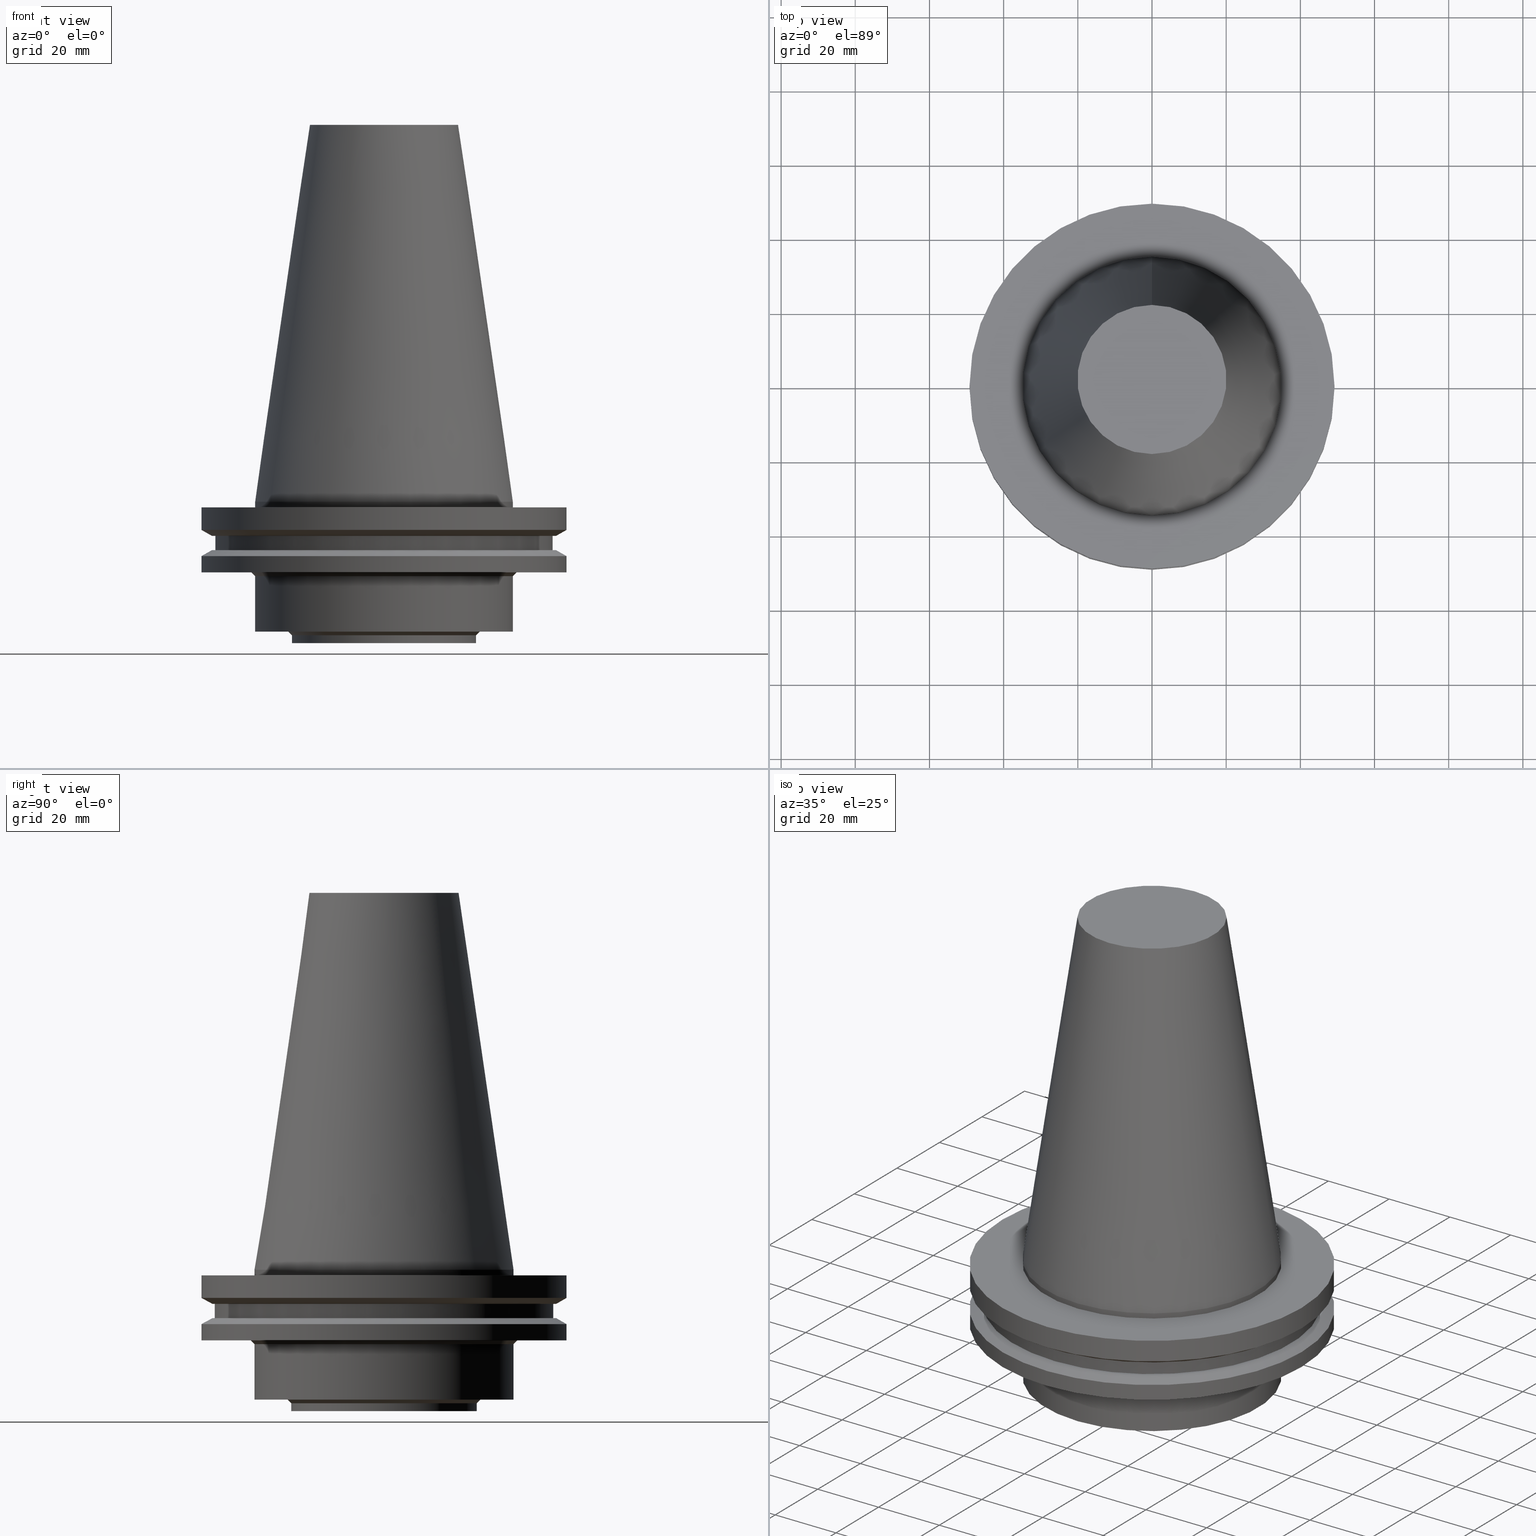
[diagram: canonical four-view strip — front | top / right | iso, engineering-drawing reading convention]
A machine part, canonical four-view strip (front | top / right | iso — engineering-drawing reading convention). The complete STEP part file that produces these views, byte-faithful:
ISO-10303-21;
HEADER;
FILE_DESCRIPTION((''),'1');
FILE_NAME('V:/90_\X2\53D65F9730C730FC30BF\X0\/00_\X2\6DE18DEF30C730FC30BF\X0\/ALL/BCV-BKUS\X2\FF76FF80FF9BFF78FF9E752852A05DE556F3\X0\201801/BCV50Y-CAPTO/BCV50Y-C5-1.5.stp','2018-02-01T02:04:12',(''),(''),'Spatial Interop R21 SP3','Kubotek KeyCreator 2011 V10.0.2 (22737)',' ');
FILE_SCHEMA(('automotive_design'));
ENDSEC;
DATA;
#1=MECHANICAL_DESIGN_GEOMETRIC_PRESENTATION_REPRESENTATION(' ',(#10,#11,#12,#13,#14,#15,#16,#17,#18,#19,#20,#21,#22,#23,#24,#25,#26,#27,#28,#29,#30,#31,#32,#33,#34,#35,#36,#37,#38,#39,#40,#41,#42,#43,#44,#45),#6);
#2=PRODUCT_DEFINITION_CONTEXT('',#46,'design');
#3=APPLICATION_PROTOCOL_DEFINITION('INTERNATIONAL STANDARD','automotive_design',1994,#46);
#4=PRODUCT_CATEGORY_RELATIONSHIP('NONE','NONE',#47,#48);
#5=SHAPE_DEFINITION_REPRESENTATION(#49,#50);
#6= (GEOMETRIC_REPRESENTATION_CONTEXT(3)GLOBAL_UNCERTAINTY_ASSIGNED_CONTEXT((#53))GLOBAL_UNIT_ASSIGNED_CONTEXT((#55,#56,#57))REPRESENTATION_CONTEXT('NONE','WORKSPACE'));
#10=STYLED_ITEM('',(#59,#60),#61);
#11=STYLED_ITEM('',(#62),#63);
#12=STYLED_ITEM('',(#64,#65),#66);
#13=STYLED_ITEM('',(#67),#68);
#14=STYLED_ITEM('',(#69,#70),#71);
#15=STYLED_ITEM('',(#72),#73);
#16=STYLED_ITEM('',(#74),#75);
#17=STYLED_ITEM('',(#76),#77);
#18=STYLED_ITEM('',(#78),#79);
#19=STYLED_ITEM('',(#80,#81),#82);
#20=STYLED_ITEM('',(#83),#84);
#21=STYLED_ITEM('',(#85,#86),#87);
#22=STYLED_ITEM('',(#88),#89);
#23=STYLED_ITEM('',(#90),#91);
#24=STYLED_ITEM('',(#92),#93);
#25=STYLED_ITEM('',(#94,#95),#96);
#26=STYLED_ITEM('',(#97),#98);
#27=STYLED_ITEM('',(#99,#100),#101);
#28=STYLED_ITEM('',(#102),#103);
#29=STYLED_ITEM('',(#104,#105),#106);
#30=STYLED_ITEM('',(#107),#108);
#31=STYLED_ITEM('',(#109,#110),#111);
#32=STYLED_ITEM('',(#112),#113);
#33=STYLED_ITEM('',(#114),#115);
#34=STYLED_ITEM('',(#116,#117),#118);
#35=STYLED_ITEM('',(#119),#120);
#36=STYLED_ITEM('',(#121,#122),#123);
#37=STYLED_ITEM('',(#124,#125),#126);
#38=STYLED_ITEM('',(#127),#128);
#39=STYLED_ITEM('',(#129,#130),#131);
#40=STYLED_ITEM('',(#132,#133),#134);
#41=STYLED_ITEM('',(#135,#136),#137);
#42=STYLED_ITEM('',(#138,#139),#140);
#43=STYLED_ITEM('',(#141,#142),#143);
#44=STYLED_ITEM('',(#144,#145),#146);
#45=STYLED_ITEM('',(#147,#148),#149);
#46=APPLICATION_CONTEXT(' ');
#47=PRODUCT_CATEGORY('part','NONE');
#48=PRODUCT_RELATED_PRODUCT_CATEGORY('detail',' ',(#150));
#49=PRODUCT_DEFINITION_SHAPE('NONE','NONE',#151);
#50=ADVANCED_BREP_SHAPE_REPRESENTATION('Unnamed[1]',(#126,#152),#6);
#53=UNCERTAINTY_MEASURE_WITH_UNIT(LENGTH_MEASURE(1.0E-006),#55,'','');
#55= (CONVERSION_BASED_UNIT('MILLIMETRE',#155)LENGTH_UNIT()NAMED_UNIT(#158));
#56= (NAMED_UNIT(#160)PLANE_ANGLE_UNIT()SI_UNIT($,.RADIAN.));
#57= (NAMED_UNIT(#160)SOLID_ANGLE_UNIT()SI_UNIT($,.STERADIAN.));
#59=PRESENTATION_STYLE_ASSIGNMENT((#166));
#60=PRESENTATION_STYLE_ASSIGNMENT((#167));
#61=ADVANCED_FACE('Unnamed[1]',(#168,#169),#170,.T.);
#62=PRESENTATION_STYLE_ASSIGNMENT((#171));
#63=EDGE_CURVE('Unnamed[1]',#172,#172,#173,.T.);
#64=PRESENTATION_STYLE_ASSIGNMENT((#174));
#65=PRESENTATION_STYLE_ASSIGNMENT((#175));
#66=ADVANCED_FACE('Unnamed[1]',(#176,#177),#178,.T.);
#67=PRESENTATION_STYLE_ASSIGNMENT((#179));
#68=EDGE_CURVE('Unnamed[1]',#180,#180,#181,.T.);
#69=PRESENTATION_STYLE_ASSIGNMENT((#182));
#70=PRESENTATION_STYLE_ASSIGNMENT((#183));
#71=ADVANCED_FACE('Unnamed[1]',(#184,#185),#186,.T.);
#72=PRESENTATION_STYLE_ASSIGNMENT((#187));
#73=EDGE_CURVE('Unnamed[1]',#188,#188,#189,.T.);
#74=PRESENTATION_STYLE_ASSIGNMENT((#190));
#75=EDGE_CURVE('Unnamed[1]',#191,#191,#192,.T.);
#76=PRESENTATION_STYLE_ASSIGNMENT((#193));
#77=EDGE_CURVE('Unnamed[1]',#194,#194,#195,.T.);
#78=PRESENTATION_STYLE_ASSIGNMENT((#196));
#79=EDGE_CURVE('Unnamed[1]',#197,#197,#198,.T.);
#80=PRESENTATION_STYLE_ASSIGNMENT((#199));
#81=PRESENTATION_STYLE_ASSIGNMENT((#200));
#82=ADVANCED_FACE('Unnamed[1]',(#201,#202),#203,.T.);
#83=PRESENTATION_STYLE_ASSIGNMENT((#204));
#84=EDGE_CURVE('Unnamed[1]',#205,#205,#206,.T.);
#85=PRESENTATION_STYLE_ASSIGNMENT((#207));
#86=PRESENTATION_STYLE_ASSIGNMENT((#208));
#87=ADVANCED_FACE('Unnamed[1]',(#209,#210),#211,.T.);
#88=PRESENTATION_STYLE_ASSIGNMENT((#212));
#89=EDGE_CURVE('Unnamed[1]',#213,#213,#214,.T.);
#90=PRESENTATION_STYLE_ASSIGNMENT((#215));
#91=EDGE_CURVE('Unnamed[1]',#216,#216,#217,.T.);
#92=PRESENTATION_STYLE_ASSIGNMENT((#218));
#93=EDGE_CURVE('Unnamed[1]',#219,#219,#220,.T.);
#94=PRESENTATION_STYLE_ASSIGNMENT((#221));
#95=PRESENTATION_STYLE_ASSIGNMENT((#222));
#96=ADVANCED_FACE('Unnamed[1]',(#223,#224),#225,.T.);
#97=PRESENTATION_STYLE_ASSIGNMENT((#226));
#98=EDGE_CURVE('Unnamed[1]',#227,#227,#228,.T.);
#99=PRESENTATION_STYLE_ASSIGNMENT((#229));
#100=PRESENTATION_STYLE_ASSIGNMENT((#230));
#101=ADVANCED_FACE('Unnamed[1]',(#231,#232),#233,.T.);
#102=PRESENTATION_STYLE_ASSIGNMENT((#234));
#103=EDGE_CURVE('Unnamed[1]',#235,#235,#236,.T.);
#104=PRESENTATION_STYLE_ASSIGNMENT((#237));
#105=PRESENTATION_STYLE_ASSIGNMENT((#238));
#106=ADVANCED_FACE('Unnamed[1]',(#239,#240),#241,.T.);
#107=PRESENTATION_STYLE_ASSIGNMENT((#242));
#108=EDGE_CURVE('Unnamed[1]',#243,#243,#244,.T.);
#109=PRESENTATION_STYLE_ASSIGNMENT((#245));
#110=PRESENTATION_STYLE_ASSIGNMENT((#246));
#111=ADVANCED_FACE('Unnamed[1]',(#247,#248),#249,.T.);
#112=PRESENTATION_STYLE_ASSIGNMENT((#250));
#113=EDGE_CURVE('Unnamed[1]',#251,#251,#252,.T.);
#114=PRESENTATION_STYLE_ASSIGNMENT((#253));
#115=EDGE_CURVE('Unnamed[1]',#254,#254,#255,.T.);
#116=PRESENTATION_STYLE_ASSIGNMENT((#256));
#117=PRESENTATION_STYLE_ASSIGNMENT((#257));
#118=ADVANCED_FACE('Unnamed[1]',(#258,#259),#260,.T.);
#119=PRESENTATION_STYLE_ASSIGNMENT((#261));
#120=EDGE_CURVE('Unnamed[1]',#262,#262,#263,.T.);
#121=PRESENTATION_STYLE_ASSIGNMENT((#264));
#122=PRESENTATION_STYLE_ASSIGNMENT((#265));
#123=ADVANCED_FACE('Unnamed[1]',(#266),#267,.T.);
#124=PRESENTATION_STYLE_ASSIGNMENT((#268));
#125=PRESENTATION_STYLE_ASSIGNMENT((#269));
#126=MANIFOLD_SOLID_BREP('Unnamed[1]',#270);
#127=PRESENTATION_STYLE_ASSIGNMENT((#271));
#128=EDGE_CURVE('Unnamed[1]',#272,#272,#273,.T.);
#129=PRESENTATION_STYLE_ASSIGNMENT((#274));
#130=PRESENTATION_STYLE_ASSIGNMENT((#275));
#131=ADVANCED_FACE('Unnamed[1]',(#276,#277),#278,.T.);
#132=PRESENTATION_STYLE_ASSIGNMENT((#279));
#133=PRESENTATION_STYLE_ASSIGNMENT((#280));
#134=ADVANCED_FACE('Unnamed[1]',(#281,#282),#283,.T.);
#135=PRESENTATION_STYLE_ASSIGNMENT((#284));
#136=PRESENTATION_STYLE_ASSIGNMENT((#285));
#137=ADVANCED_FACE('Unnamed[1]',(#286,#287),#288,.T.);
#138=PRESENTATION_STYLE_ASSIGNMENT((#289));
#139=PRESENTATION_STYLE_ASSIGNMENT((#290));
#140=ADVANCED_FACE('Unnamed[1]',(#291,#292),#293,.T.);
#141=PRESENTATION_STYLE_ASSIGNMENT((#294));
#142=PRESENTATION_STYLE_ASSIGNMENT((#295));
#143=ADVANCED_FACE('Unnamed[1]',(#296,#297),#298,.T.);
#144=PRESENTATION_STYLE_ASSIGNMENT((#299));
#145=PRESENTATION_STYLE_ASSIGNMENT((#300));
#146=ADVANCED_FACE('Unnamed[1]',(#301),#302,.T.);
#147=PRESENTATION_STYLE_ASSIGNMENT((#303));
#148=PRESENTATION_STYLE_ASSIGNMENT((#304));
#149=ADVANCED_FACE('Unnamed[1]',(#305,#306),#307,.T.);
#150=PRODUCT('Unnamed[1]','Unnamed[1]','PART-Unnamed[1]-DESC',(#308));
#151=PRODUCT_DEFINITION('NONE','NONE',#309,#2);
#152=AXIS2_PLACEMENT_3D('',#310,#311,#312);
#155=LENGTH_MEASURE_WITH_UNIT(LENGTH_MEASURE(1.0),#313);
#158=DIMENSIONAL_EXPONENTS(1.0,0.0,0.0,0.0,0.0,0.0,0.0);
#160=DIMENSIONAL_EXPONENTS(0.0,0.0,0.0,0.0,0.0,0.0,0.0);
#166=SURFACE_STYLE_USAGE(.BOTH.,#314);
#167=CURVE_STYLE('',#315,POSITIVE_LENGTH_MEASURE(1000.0),#316);
#168=FACE_BOUND('',#317,.T.);
#169=FACE_BOUND('',#318,.T.);
#170=CONICAL_SURFACE('',#319,47.8225292269259,1.04719755119659);
#171=CURVE_STYLE('',#320,POSITIVE_LENGTH_MEASURE(1000.0),#321);
#172=VERTEX_POINT('',#322);
#173=CIRCLE('',#323,20.1083333333333);
#174=SURFACE_STYLE_USAGE(.BOTH.,#324);
#175=CURVE_STYLE('',#325,POSITIVE_LENGTH_MEASURE(1000.0),#326);
#176=FACE_BOUND('',#327,.T.);
#177=FACE_BOUND('',#328,.T.);
#178=CONICAL_SURFACE('',#329,47.822529226926,1.04719755119663);
#179=CURVE_STYLE('',#330,POSITIVE_LENGTH_MEASURE(1000.0),#331);
#180=VERTEX_POINT('',#332);
#181=CIRCLE('',#333,49.2125000000001);
#182=SURFACE_STYLE_USAGE(.BOTH.,#334);
#183=CURVE_STYLE('',#335,POSITIVE_LENGTH_MEASURE(1000.0),#336);
#184=FACE_BOUND('',#337,.T.);
#185=FACE_OUTER_BOUND('',#338,.T.);
#186=PLANE('',#339);
#187=CURVE_STYLE('',#340,POSITIVE_LENGTH_MEASURE(1000.0),#341);
#188=VERTEX_POINT('',#342);
#189=CIRCLE('',#343,45.6449999999999);
#190=CURVE_STYLE('',#344,POSITIVE_LENGTH_MEASURE(1000.0),#345);
#191=VERTEX_POINT('',#346);
#192=CIRCLE('',#347,46.4325584538519);
#193=CURVE_STYLE('',#348,POSITIVE_LENGTH_MEASURE(1000.0),#349);
#194=VERTEX_POINT('',#350);
#195=CIRCLE('',#351,34.9249999999998);
#196=CURVE_STYLE('',#352,POSITIVE_LENGTH_MEASURE(1000.0),#353);
#197=VERTEX_POINT('',#354);
#198=CIRCLE('',#355,34.925);
#199=SURFACE_STYLE_USAGE(.BOTH.,#356);
#200=CURVE_STYLE('',#357,POSITIVE_LENGTH_MEASURE(1000.0),#358);
#201=FACE_OUTER_BOUND('',#359,.T.);
#202=FACE_BOUND('',#360,.T.);
#203=PLANE('',#361);
#204=CURVE_STYLE('',#362,POSITIVE_LENGTH_MEASURE(1000.0),#363);
#205=VERTEX_POINT('',#364);
#206=CIRCLE('',#365,34.9250000000001);
#207=SURFACE_STYLE_USAGE(.BOTH.,#366);
#208=CURVE_STYLE('',#367,POSITIVE_LENGTH_MEASURE(1000.0),#368);
#209=FACE_BOUND('',#369,.T.);
#210=FACE_BOUND('',#370,.T.);
#211=CYLINDRICAL_SURFACE('',#371,49.2124999999999);
#212=CURVE_STYLE('',#372,POSITIVE_LENGTH_MEASURE(1000.0),#373);
#213=VERTEX_POINT('',#374);
#214=CIRCLE('',#375,49.2124999999999);
#215=CURVE_STYLE('',#376,POSITIVE_LENGTH_MEASURE(1000.0),#377);
#216=VERTEX_POINT('',#378);
#217=CIRCLE('',#379,25.0);
#218=CURVE_STYLE('',#380,POSITIVE_LENGTH_MEASURE(1000.0),#381);
#219=VERTEX_POINT('',#382);
#220=CIRCLE('',#383,46.432558453852);
#221=SURFACE_STYLE_USAGE(.BOTH.,#384);
#222=CURVE_STYLE('',#385,POSITIVE_LENGTH_MEASURE(1000.0),#386);
#223=FACE_BOUND('',#387,.T.);
#224=FACE_BOUND('',#388,.T.);
#225=CONICAL_SURFACE('',#389,35.4249999999775,0.785398163374958);
#226=CURVE_STYLE('',#390,POSITIVE_LENGTH_MEASURE(1000.0),#391);
#227=VERTEX_POINT('',#392);
#228=CIRCLE('',#393,45.6449999999999);
#229=SURFACE_STYLE_USAGE(.BOTH.,#394);
#230=CURVE_STYLE('',#395,POSITIVE_LENGTH_MEASURE(1000.0),#396);
#231=FACE_BOUND('',#397,.T.);
#232=FACE_BOUND('',#398,.T.);
#233=CONICAL_SURFACE('',#399,27.5166666666667,0.144812498238938);
#234=CURVE_STYLE('',#400,POSITIVE_LENGTH_MEASURE(1000.0),#401);
#235=VERTEX_POINT('',#402);
#236=CIRCLE('',#403,26.0);
#237=SURFACE_STYLE_USAGE(.BOTH.,#404);
#238=CURVE_STYLE('',#405,POSITIVE_LENGTH_MEASURE(1000.0),#406);
#239=FACE_BOUND('',#407,.T.);
#240=FACE_BOUND('',#408,.T.);
#241=CYLINDRICAL_SURFACE('',#409,49.2125);
#242=CURVE_STYLE('',#410,POSITIVE_LENGTH_MEASURE(1000.0),#411);
#243=VERTEX_POINT('',#412);
#244=CIRCLE('',#413,35.924999999955);
#245=SURFACE_STYLE_USAGE(.BOTH.,#414);
#246=CURVE_STYLE('',#415,POSITIVE_LENGTH_MEASURE(1000.0),#416);
#247=FACE_BOUND('',#417,.T.);
#248=FACE_BOUND('',#418,.T.);
#249=CYLINDRICAL_SURFACE('',#419,34.9249999999999);
#250=CURVE_STYLE('',#420,POSITIVE_LENGTH_MEASURE(1000.0),#421);
#251=VERTEX_POINT('',#422);
#252=CIRCLE('',#423,34.925);
#253=CURVE_STYLE('',#424,POSITIVE_LENGTH_MEASURE(1000.0),#425);
#254=VERTEX_POINT('',#426);
#255=CIRCLE('',#427,49.2124999999999);
#256=SURFACE_STYLE_USAGE(.BOTH.,#428);
#257=CURVE_STYLE('',#429,POSITIVE_LENGTH_MEASURE(1000.0),#430);
#258=FACE_OUTER_BOUND('',#431,.T.);
#259=FACE_BOUND('',#432,.T.);
#260=PLANE('',#433);
#261=CURVE_STYLE('',#434,POSITIVE_LENGTH_MEASURE(1000.0),#435);
#262=VERTEX_POINT('',#436);
#263=CIRCLE('',#437,25.0);
#264=SURFACE_STYLE_USAGE(.BOTH.,#438);
#265=CURVE_STYLE('',#439,POSITIVE_LENGTH_MEASURE(1000.0),#440);
#266=FACE_OUTER_BOUND('',#441,.T.);
#267=PLANE('',#442);
#268=SURFACE_STYLE_USAGE(.BOTH.,#443);
#269=CURVE_STYLE('',#444,POSITIVE_LENGTH_MEASURE(1000.0),#445);
#270=CLOSED_SHELL('',(#146,#101,#131,#82,#106,#66,#71,#149,#118,#61,#87,#140,#96,#111,#134,#137,#143,#123));
#271=CURVE_STYLE('',#446,POSITIVE_LENGTH_MEASURE(1000.0),#447);
#272=VERTEX_POINT('',#448);
#273=CIRCLE('',#449,49.2124999999999);
#274=SURFACE_STYLE_USAGE(.BOTH.,#450);
#275=CURVE_STYLE('',#451,POSITIVE_LENGTH_MEASURE(1000.0),#452);
#276=FACE_BOUND('',#453,.T.);
#277=FACE_BOUND('',#454,.T.);
#278=CYLINDRICAL_SURFACE('',#455,34.925);
#279=SURFACE_STYLE_USAGE(.BOTH.,#456);
#280=CURVE_STYLE('',#457,POSITIVE_LENGTH_MEASURE(1000.0),#458);
#281=FACE_BOUND('',#459,.T.);
#282=FACE_OUTER_BOUND('',#460,.T.);
#283=PLANE('',#461);
#284=SURFACE_STYLE_USAGE(.BOTH.,#462);
#285=CURVE_STYLE('',#463,POSITIVE_LENGTH_MEASURE(1000.0),#464);
#286=FACE_BOUND('',#465,.T.);
#287=FACE_BOUND('',#466,.T.);
#288=CONICAL_SURFACE('',#467,25.5,0.785398163397449);
#289=SURFACE_STYLE_USAGE(.BOTH.,#468);
#290=CURVE_STYLE('',#469,POSITIVE_LENGTH_MEASURE(1000.0),#470);
#291=FACE_BOUND('',#471,.T.);
#292=FACE_OUTER_BOUND('',#472,.T.);
#293=PLANE('',#473);
#294=SURFACE_STYLE_USAGE(.BOTH.,#474);
#295=CURVE_STYLE('',#475,POSITIVE_LENGTH_MEASURE(1000.0),#476);
#296=FACE_BOUND('',#477,.T.);
#297=FACE_BOUND('',#478,.T.);
#298=CYLINDRICAL_SURFACE('',#479,25.0);
#299=SURFACE_STYLE_USAGE(.BOTH.,#480);
#300=CURVE_STYLE('',#481,POSITIVE_LENGTH_MEASURE(1000.0),#482);
#301=FACE_OUTER_BOUND('',#483,.T.);
#302=PLANE('',#484);
#303=SURFACE_STYLE_USAGE(.BOTH.,#485);
#304=CURVE_STYLE('',#486,POSITIVE_LENGTH_MEASURE(1000.0),#487);
#305=FACE_BOUND('',#488,.T.);
#306=FACE_BOUND('',#489,.T.);
#307=CYLINDRICAL_SURFACE('',#490,45.6449999999999);
#308=PRODUCT_CONTEXT('',#46,'mechanical');
#309=PRODUCT_DEFINITION_FORMATION_WITH_SPECIFIED_SOURCE(' ','NONE',#150,.NOT_KNOWN.);
#310=CARTESIAN_POINT('',(0.0,0.0,0.0));
#311=DIRECTION('',(0.0,0.0,1.0));
#312=DIRECTION('',(1.0,0.0,0.0));
#313= (NAMED_UNIT(#158)LENGTH_UNIT()SI_UNIT(.MILLI.,.METRE.));
#314=SURFACE_SIDE_STYLE('',(#492));
#315=DRAUGHTING_PRE_DEFINED_CURVE_FONT('continuous');
#316=COLOUR_RGB('',0.0,1.0,0.0);
#317=EDGE_LOOP('',(#493));
#318=EDGE_LOOP('',(#494));
#319=AXIS2_PLACEMENT_3D('',#495,#496,#497);
#320=DRAUGHTING_PRE_DEFINED_CURVE_FONT('continuous');
#321=COLOUR_RGB('',0.0,1.0,0.0);
#322=CARTESIAN_POINT('',(-6.22120573966855E-015,20.1083333333332,101.6));
#323=AXIS2_PLACEMENT_3D('',#498,#499,#500);
#324=SURFACE_SIDE_STYLE('',(#501));
#325=DRAUGHTING_PRE_DEFINED_CURVE_FONT('continuous');
#326=COLOUR_RGB('',0.0,1.0,0.0);
#327=EDGE_LOOP('',(#502));
#328=EDGE_LOOP('',(#503));
#329=AXIS2_PLACEMENT_3D('',#504,#505,#506);
#330=DRAUGHTING_PRE_DEFINED_CURVE_FONT('continuous');
#331=COLOUR_RGB('',0.0,1.0,0.0);
#332=CARTESIAN_POINT('',(4.65059621976208E-016,49.2125,-7.59500000000002));
#333=AXIS2_PLACEMENT_3D('',#507,#508,#509);
#334=SURFACE_SIDE_STYLE('',(#510));
#335=DRAUGHTING_PRE_DEFINED_CURVE_FONT('continuous');
#336=COLOUR_RGB('',0.0,1.0,0.0);
#337=EDGE_LOOP('',(#511));
#338=EDGE_LOOP('',(#512));
#339=AXIS2_PLACEMENT_3D('',#513,#514,#515);
#340=DRAUGHTING_PRE_DEFINED_CURVE_FONT('continuous');
#341=COLOUR_RGB('',0.0,1.0,0.0);
#342=CARTESIAN_POINT('',(5.63337527607778E-016,45.6449999999999,-9.19999999999993));
#343=AXIS2_PLACEMENT_3D('',#516,#517,#518);
#344=DRAUGHTING_PRE_DEFINED_CURVE_FONT('continuous');
#345=COLOUR_RGB('',0.0,1.0,0.0);
#346=CARTESIAN_POINT('',(7.98469713044071E-016,46.4325584538519,-13.04));
#347=AXIS2_PLACEMENT_3D('',#519,#520,#521);
#348=DRAUGHTING_PRE_DEFINED_CURVE_FONT('continuous');
#349=COLOUR_RGB('',0.0,1.0,0.0);
#350=CARTESIAN_POINT('',(2.14313189850786E-015,34.9249999999998,-34.9999999999999));
#351=AXIS2_PLACEMENT_3D('',#522,#523,#524);
#352=DRAUGHTING_PRE_DEFINED_CURVE_FONT('continuous');
#353=COLOUR_RGB('',0.0,1.0,0.0);
#354=CARTESIAN_POINT('',(9.18485099360511E-017,34.925,-1.5));
#355=AXIS2_PLACEMENT_3D('',#525,#526,#527);
#356=SURFACE_SIDE_STYLE('',(#528));
#357=DRAUGHTING_PRE_DEFINED_CURVE_FONT('continuous');
#358=COLOUR_RGB('',0.0,1.0,0.0);
#359=EDGE_LOOP('',(#529));
#360=EDGE_LOOP('',(#530));
#361=AXIS2_PLACEMENT_3D('',#531,#532,#533);
#362=DRAUGHTING_PRE_DEFINED_CURVE_FONT('continuous');
#363=COLOUR_RGB('',0.0,1.0,0.0);
#364=CARTESIAN_POINT('',(1.22770841614522E-015,34.925,-20.05));
#365=AXIS2_PLACEMENT_3D('',#534,#535,#536);
#366=SURFACE_SIDE_STYLE('',(#537));
#367=DRAUGHTING_PRE_DEFINED_CURVE_FONT('continuous');
#368=COLOUR_RGB('',0.0,1.0,0.0);
#369=EDGE_LOOP('',(#538));
#370=EDGE_LOOP('',(#539));
#371=AXIS2_PLACEMENT_3D('',#540,#541,#542);
#372=DRAUGHTING_PRE_DEFINED_CURVE_FONT('continuous');
#373=COLOUR_RGB('',0.0,1.0,0.0);
#374=CARTESIAN_POINT('',(8.96747618675648E-016,49.2124999999999,-14.645));
#375=AXIS2_PLACEMENT_3D('',#543,#544,#545);
#376=DRAUGHTING_PRE_DEFINED_CURVE_FONT('continuous');
#377=COLOUR_RGB('',0.0,1.0,0.0);
#378=CARTESIAN_POINT('',(2.33295215237571E-015,25.0,-38.1));
#379=AXIS2_PLACEMENT_3D('',#546,#547,#548);
#380=DRAUGHTING_PRE_DEFINED_CURVE_FONT('continuous');
#381=COLOUR_RGB('',0.0,1.0,0.0);
#382=CARTESIAN_POINT('',(5.63337527607778E-016,46.432558453852,-9.19999999999993));
#383=AXIS2_PLACEMENT_3D('',#549,#550,#551);
#384=SURFACE_SIDE_STYLE('',(#552));
#385=DRAUGHTING_PRE_DEFINED_CURVE_FONT('continuous');
#386=COLOUR_RGB('',0.0,1.0,0.0);
#387=EDGE_LOOP('',(#553));
#388=EDGE_LOOP('',(#554));
#389=AXIS2_PLACEMENT_3D('',#555,#556,#557);
#390=DRAUGHTING_PRE_DEFINED_CURVE_FONT('continuous');
#391=COLOUR_RGB('',0.0,1.0,0.0);
#392=CARTESIAN_POINT('',(7.98469713044071E-016,45.6449999999999,-13.04));
#393=AXIS2_PLACEMENT_3D('',#558,#559,#560);
#394=SURFACE_SIDE_STYLE('',(#561));
#395=DRAUGHTING_PRE_DEFINED_CURVE_FONT('continuous');
#396=COLOUR_RGB('',0.0,1.0,0.0);
#397=EDGE_LOOP('',(#562));
#398=EDGE_LOOP('',(#563));
#399=AXIS2_PLACEMENT_3D('',#564,#565,#566);
#400=DRAUGHTING_PRE_DEFINED_CURVE_FONT('continuous');
#401=COLOUR_RGB('',0.0,1.0,0.0);
#402=CARTESIAN_POINT('',(2.14313189850786E-015,26.0,-34.9999999999999));
#403=AXIS2_PLACEMENT_3D('',#567,#568,#569);
#404=SURFACE_SIDE_STYLE('',(#570));
#405=DRAUGHTING_PRE_DEFINED_CURVE_FONT('continuous');
#406=COLOUR_RGB('',0.0,1.0,0.0);
#407=EDGE_LOOP('',(#571));
#408=EDGE_LOOP('',(#572));
#409=AXIS2_PLACEMENT_3D('',#573,#574,#575);
#410=DRAUGHTING_PRE_DEFINED_CURVE_FONT('continuous');
#411=COLOUR_RGB('',0.0,1.0,0.0);
#412=CARTESIAN_POINT('',(1.16647607618786E-015,35.924999999955,-19.0500000000001));
#413=AXIS2_PLACEMENT_3D('',#576,#577,#578);
#414=SURFACE_SIDE_STYLE('',(#579));
#415=DRAUGHTING_PRE_DEFINED_CURVE_FONT('continuous');
#416=COLOUR_RGB('',0.0,1.0,0.0);
#417=EDGE_LOOP('',(#580));
#418=EDGE_LOOP('',(#581));
#419=AXIS2_PLACEMENT_3D('',#582,#583,#584);
#420=DRAUGHTING_PRE_DEFINED_CURVE_FONT('continuous');
#421=COLOUR_RGB('',0.0,1.0,0.0);
#422=CARTESIAN_POINT('',(4.82986938111671E-029,34.925,-7.9153078510529E-013));
#423=AXIS2_PLACEMENT_3D('',#585,#586,#587);
#424=DRAUGHTING_PRE_DEFINED_CURVE_FONT('continuous');
#425=COLOUR_RGB('',0.0,1.0,0.0);
#426=CARTESIAN_POINT('',(1.16647607618786E-015,49.2124999999999,-19.0500000000001));
#427=AXIS2_PLACEMENT_3D('',#588,#589,#590);
#428=SURFACE_SIDE_STYLE('',(#591));
#429=DRAUGHTING_PRE_DEFINED_CURVE_FONT('continuous');
#430=COLOUR_RGB('',0.0,1.0,0.0);
#431=EDGE_LOOP('',(#592));
#432=EDGE_LOOP('',(#593));
#433=AXIS2_PLACEMENT_3D('',#594,#595,#596);
#434=DRAUGHTING_PRE_DEFINED_CURVE_FONT('continuous');
#435=COLOUR_RGB('',0.0,1.0,0.0);
#436=CARTESIAN_POINT('',(2.20436423846523E-015,25.0,-35.9999999999999));
#437=AXIS2_PLACEMENT_3D('',#597,#598,#599);
#438=SURFACE_SIDE_STYLE('',(#600));
#439=DRAUGHTING_PRE_DEFINED_CURVE_FONT('continuous');
#440=COLOUR_RGB('',0.0,1.0,0.0);
#441=EDGE_LOOP('',(#601));
#442=AXIS2_PLACEMENT_3D('',#602,#603,#604);
#443=SURFACE_SIDE_STYLE('',(#605));
#444=DRAUGHTING_PRE_DEFINED_CURVE_FONT('continuous');
#445=COLOUR_RGB('',0.0,1.0,0.0);
#446=DRAUGHTING_PRE_DEFINED_CURVE_FONT('continuous');
#447=COLOUR_RGB('',0.0,1.0,0.0);
#448=CARTESIAN_POINT('',(9.18485099360509E-017,49.2124999999999,-1.49999999999999));
#449=AXIS2_PLACEMENT_3D('',#606,#607,#608);
#450=SURFACE_SIDE_STYLE('',(#609));
#451=DRAUGHTING_PRE_DEFINED_CURVE_FONT('continuous');
#452=COLOUR_RGB('',0.0,1.0,0.0);
#453=EDGE_LOOP('',(#610));
#454=EDGE_LOOP('',(#611));
#455=AXIS2_PLACEMENT_3D('',#612,#613,#614);
#456=SURFACE_SIDE_STYLE('',(#615));
#457=DRAUGHTING_PRE_DEFINED_CURVE_FONT('continuous');
#458=COLOUR_RGB('',0.0,1.0,0.0);
#459=EDGE_LOOP('',(#616));
#460=EDGE_LOOP('',(#617));
#461=AXIS2_PLACEMENT_3D('',#618,#619,#620);
#462=SURFACE_SIDE_STYLE('',(#621));
#463=DRAUGHTING_PRE_DEFINED_CURVE_FONT('continuous');
#464=COLOUR_RGB('',0.0,1.0,0.0);
#465=EDGE_LOOP('',(#622));
#466=EDGE_LOOP('',(#623));
#467=AXIS2_PLACEMENT_3D('',#624,#625,#626);
#468=SURFACE_SIDE_STYLE('',(#627));
#469=DRAUGHTING_PRE_DEFINED_CURVE_FONT('continuous');
#470=COLOUR_RGB('',0.0,1.0,0.0);
#471=EDGE_LOOP('',(#628));
#472=EDGE_LOOP('',(#629));
#473=AXIS2_PLACEMENT_3D('',#630,#631,#632);
#474=SURFACE_SIDE_STYLE('',(#633));
#475=DRAUGHTING_PRE_DEFINED_CURVE_FONT('continuous');
#476=COLOUR_RGB('',0.0,1.0,0.0);
#477=EDGE_LOOP('',(#634));
#478=EDGE_LOOP('',(#635));
#479=AXIS2_PLACEMENT_3D('',#636,#637,#638);
#480=SURFACE_SIDE_STYLE('',(#639));
#481=DRAUGHTING_PRE_DEFINED_CURVE_FONT('continuous');
#482=COLOUR_RGB('',0.0,1.0,0.0);
#483=EDGE_LOOP('',(#640));
#484=AXIS2_PLACEMENT_3D('',#641,#642,#643);
#485=SURFACE_SIDE_STYLE('',(#644));
#486=DRAUGHTING_PRE_DEFINED_CURVE_FONT('continuous');
#487=COLOUR_RGB('',0.0,1.0,0.0);
#488=EDGE_LOOP('',(#645));
#489=EDGE_LOOP('',(#646));
#490=AXIS2_PLACEMENT_3D('',#647,#648,#649);
#492=SURFACE_STYLE_FILL_AREA(#650);
#493=ORIENTED_EDGE('',*,*,#89,.F.);
#494=ORIENTED_EDGE('',*,*,#75,.T.);
#495=CARTESIAN_POINT('',(8.47608665859861E-016,-9.16001451501009E-015,-13.8425));
#496=DIRECTION('',(6.12323399573677E-017,5.07982991083333E-016,-1.0));
#497=DIRECTION('',(-3.59321399333442E-032,1.0,5.07982991083333E-016));
#498=CARTESIAN_POINT('',(-6.22120573966855E-015,-6.78028409631478E-014,101.6));
#499=DIRECTION('',(6.12323399573677E-017,5.07982991083333E-016,-1.0));
#500=DIRECTION('',(-3.59321399333442E-032,1.0,5.07982991083333E-016));
#501=SURFACE_STYLE_FILL_AREA(#651);
#502=ORIENTED_EDGE('',*,*,#93,.F.);
#503=ORIENTED_EDGE('',*,*,#68,.T.);
#504=CARTESIAN_POINT('',(5.14198574791995E-016,-1.19259819014588E-014,-8.3975));
#505=DIRECTION('',(-6.12323399573677E-017,-5.07982991083333E-016,1.0));
#506=DIRECTION('',(-3.59321399333442E-032,1.0,5.07982991083333E-016));
#507=CARTESIAN_POINT('',(4.6505962197621E-016,-1.23336382518032E-014,-7.59500000000005));
#508=DIRECTION('',(6.12323399573676E-017,5.07982991083333E-016,-1.0));
#509=DIRECTION('',(-3.59321399333442E-032,1.0,5.07982991083333E-016));
#510=SURFACE_STYLE_FILL_AREA(#652);
#511=ORIENTED_EDGE('',*,*,#73,.F.);
#512=ORIENTED_EDGE('',*,*,#93,.T.);
#513=CARTESIAN_POINT('',(5.63337527607778E-016,46.0387792269259,-9.19999999999993));
#514=DIRECTION('',(6.12323399573677E-017,1.22464679914735E-016,-1.0));
#515=DIRECTION('',(-1.23259516440783E-032,1.0,1.22464679914735E-016));
#516=CARTESIAN_POINT('',(5.63337527607779E-016,-1.15183255511145E-014,-9.19999999999995));
#517=DIRECTION('',(6.12323399573677E-017,5.07982991083333E-016,-1.0));
#518=DIRECTION('',(-3.59321399333442E-032,1.0,5.07982991083333E-016));
#519=CARTESIAN_POINT('',(7.98469713044073E-016,-9.56767086535446E-015,-13.04));
#520=DIRECTION('',(6.12323399573677E-017,5.07982991083333E-016,-1.0));
#521=DIRECTION('',(-3.59321399333442E-032,1.0,5.07982991083333E-016));
#522=CARTESIAN_POINT('',(2.14313189850786E-015,1.5876356188355E-015,-34.9999999999999));
#523=DIRECTION('',(6.12323399573677E-017,5.07982991083333E-016,-1.0));
#524=DIRECTION('',(-3.59321399333442E-032,1.0,5.07982991083333E-016));
#525=CARTESIAN_POINT('',(9.18485099360524E-017,-1.54297945824561E-014,-1.50000000000001));
#526=DIRECTION('',(6.12323399573677E-017,5.07982991083333E-016,-1.0));
#527=DIRECTION('',(-3.59321399333442E-032,1.0,5.07982991083333E-016));
#528=SURFACE_STYLE_FILL_AREA(#653);
#529=ORIENTED_EDGE('',*,*,#128,.F.);
#530=ORIENTED_EDGE('',*,*,#79,.T.);
#531=CARTESIAN_POINT('',(9.1848509936051E-017,42.0687499999999,-1.49999999999999));
#532=DIRECTION('',(-6.12323399573677E-017,-1.22464679914735E-016,1.0));
#533=DIRECTION('',(1.23259516440783E-032,-1.0,-1.22464679914735E-016));
#534=CARTESIAN_POINT('',(1.22770841614522E-015,-6.00671009786027E-015,-20.05));
#535=DIRECTION('',(6.12323399573677E-017,5.07982991083333E-016,-1.0));
#536=DIRECTION('',(-3.59321399333442E-032,1.0,5.07982991083333E-016));
#537=SURFACE_STYLE_FILL_AREA(#654);
#538=ORIENTED_EDGE('',*,*,#115,.F.);
#539=ORIENTED_EDGE('',*,*,#89,.T.);
#540=CARTESIAN_POINT('',(1.03161184743175E-015,-7.63352562680464E-015,-16.8475));
#541=DIRECTION('',(6.12323399573677E-017,5.07982991083333E-016,-1.0));
#542=DIRECTION('',(-3.59321399333442E-032,1.0,5.07982991083333E-016));
#543=CARTESIAN_POINT('',(8.96747618675649E-016,-8.7523581646657E-015,-14.645));
#544=DIRECTION('',(6.12323399573677E-017,5.07982991083333E-016,-1.0));
#545=DIRECTION('',(-3.59321399333442E-032,1.0,5.07982991083333E-016));
#546=CARTESIAN_POINT('',(2.33295215237571E-015,3.1623828911939E-015,-38.1));
#547=DIRECTION('',(6.12323399573677E-017,5.07982991083333E-016,-1.0));
#548=DIRECTION('',(-3.59321399333442E-032,1.0,5.07982991083333E-016));
#549=CARTESIAN_POINT('',(5.63337527607779E-016,-1.15183255511145E-014,-9.19999999999995));
#550=DIRECTION('',(6.12323399573677E-017,5.07982991083333E-016,-1.0));
#551=DIRECTION('',(-3.59321399333442E-032,1.0,5.07982991083333E-016));
#552=SURFACE_STYLE_FILL_AREA(#655);
#553=ORIENTED_EDGE('',*,*,#84,.F.);
#554=ORIENTED_EDGE('',*,*,#108,.T.);
#555=CARTESIAN_POINT('',(1.19709224616654E-015,-6.26070159340192E-015,-19.5500000000001));
#556=DIRECTION('',(-6.12323399573677E-017,-5.07982991083333E-016,1.0));
#557=DIRECTION('',(-3.59321399333442E-032,1.0,5.07982991083333E-016));
#558=CARTESIAN_POINT('',(7.98469713044073E-016,-9.56767086535446E-015,-13.04));
#559=DIRECTION('',(6.12323399573677E-017,5.07982991083333E-016,-1.0));
#560=DIRECTION('',(-3.59321399333442E-032,1.0,5.07982991083333E-016));
#561=SURFACE_STYLE_FILL_AREA(#656);
#562=ORIENTED_EDGE('',*,*,#113,.F.);
#563=ORIENTED_EDGE('',*,*,#63,.T.);
#564=CARTESIAN_POINT('',(-3.11060286983425E-015,-4.19973050161142E-014,50.7999999999996));
#565=DIRECTION('',(6.12323399573677E-017,5.07982991083333E-016,-1.0));
#566=DIRECTION('',(-3.59321399333442E-032,1.0,5.07982991083333E-016));
#567=CARTESIAN_POINT('',(2.14313189850786E-015,1.5876356188355E-015,-34.9999999999999));
#568=DIRECTION('',(6.12323399573677E-017,5.07982991083333E-016,-1.0));
#569=DIRECTION('',(-3.59321399333442E-032,1.0,5.07982991083333E-016));
#570=SURFACE_STYLE_FILL_AREA(#657);
#571=ORIENTED_EDGE('',*,*,#68,.F.);
#572=ORIENTED_EDGE('',*,*,#128,.T.);
#573=CARTESIAN_POINT('',(2.78454065956132E-016,-1.38817164171296E-014,-4.54750000000004));
#574=DIRECTION('',(6.12323399573677E-017,5.07982991083333E-016,-1.0));
#575=DIRECTION('',(-3.59321399333442E-032,1.0,5.07982991083333E-016));
#576=CARTESIAN_POINT('',(1.16647607618786E-015,-6.51469308894358E-015,-19.0500000000001));
#577=DIRECTION('',(6.12323399573677E-017,5.07982991083333E-016,-1.0));
#578=DIRECTION('',(-3.59321399333442E-032,1.0,5.07982991083333E-016));
#579=SURFACE_STYLE_FILL_AREA(#658);
#580=ORIENTED_EDGE('',*,*,#77,.F.);
#581=ORIENTED_EDGE('',*,*,#84,.T.);
#582=CARTESIAN_POINT('',(1.68542015732654E-015,-2.20953723951239E-015,-27.525));
#583=DIRECTION('',(6.12323399573677E-017,5.07982991083333E-016,-1.0));
#584=DIRECTION('',(-3.59321399333442E-032,1.0,5.07982991083333E-016));
#585=CARTESIAN_POINT('',(4.95993415593426E-029,-1.61917690690807E-014,-8.10018718766514E-013));
#586=DIRECTION('',(6.12323399573677E-017,5.07982991083333E-016,-1.0));
#587=DIRECTION('',(-3.59321399333442E-032,1.0,5.07982991083333E-016));
#588=CARTESIAN_POINT('',(1.16647607618786E-015,-6.51469308894357E-015,-19.0500000000001));
#589=DIRECTION('',(6.12323399573677E-017,5.07982991083333E-016,-1.0));
#590=DIRECTION('',(-3.59321399333442E-032,1.0,5.07982991083333E-016));
#591=SURFACE_STYLE_FILL_AREA(#659);
#592=ORIENTED_EDGE('',*,*,#75,.F.);
#593=ORIENTED_EDGE('',*,*,#98,.T.);
#594=CARTESIAN_POINT('',(7.98469713044071E-016,46.0387792269259,-13.04));
#595=DIRECTION('',(-6.12323399573677E-017,-1.22464679914735E-016,1.0));
#596=DIRECTION('',(1.23259516440783E-032,-1.0,-1.22464679914735E-016));
#597=CARTESIAN_POINT('',(2.20436423846523E-015,2.09561860991883E-015,-35.9999999999999));
#598=DIRECTION('',(6.12323399573677E-017,5.07982991083333E-016,-1.0));
#599=DIRECTION('',(-3.59321399333442E-032,1.0,5.07982991083333E-016));
#600=SURFACE_STYLE_FILL_AREA(#660);
#601=ORIENTED_EDGE('',*,*,#91,.T.);
#602=CARTESIAN_POINT('',(2.33295215237571E-015,12.5,-38.1));
#603=DIRECTION('',(6.12323399573677E-017,1.22464679914735E-016,-1.0));
#604=DIRECTION('',(-1.23259516440783E-032,1.0,1.22464679914735E-016));
#605=SURFACE_STYLE_FILL_AREA(#661);
#606=CARTESIAN_POINT('',(9.18485099360528E-017,-1.54297945824561E-014,-1.50000000000002));
#607=DIRECTION('',(6.12323399573676E-017,5.07982991083333E-016,-1.0));
#608=DIRECTION('',(-3.59321399333442E-032,1.0,5.07982991083333E-016));
#609=SURFACE_STYLE_FILL_AREA(#662);
#610=ORIENTED_EDGE('',*,*,#79,.F.);
#611=ORIENTED_EDGE('',*,*,#113,.T.);
#612=CARTESIAN_POINT('',(4.5924254968051E-017,-1.58107818257684E-014,-0.750000000000412));
#613=DIRECTION('',(6.12323399573677E-017,5.07982991083333E-016,-1.0));
#614=DIRECTION('',(-3.59321399333442E-032,1.0,5.07982991083333E-016));
#615=SURFACE_STYLE_FILL_AREA(#663);
#616=ORIENTED_EDGE('',*,*,#103,.F.);
#617=ORIENTED_EDGE('',*,*,#77,.T.);
#618=CARTESIAN_POINT('',(2.14313189850786E-015,30.4624999999999,-34.9999999999999));
#619=DIRECTION('',(6.12323399573677E-017,1.22464679914735E-016,-1.0));
#620=DIRECTION('',(-1.23259516440783E-032,1.0,1.22464679914735E-016));
#621=SURFACE_STYLE_FILL_AREA(#664);
#622=ORIENTED_EDGE('',*,*,#120,.F.);
#623=ORIENTED_EDGE('',*,*,#103,.T.);
#624=CARTESIAN_POINT('',(2.17374806848655E-015,1.84162711437716E-015,-35.4999999999999));
#625=DIRECTION('',(-6.12323399573677E-017,-5.07982991083333E-016,1.0));
#626=DIRECTION('',(-3.59321399333442E-032,1.0,5.07982991083333E-016));
#627=SURFACE_STYLE_FILL_AREA(#665);
#628=ORIENTED_EDGE('',*,*,#108,.F.);
#629=ORIENTED_EDGE('',*,*,#115,.T.);
#630=CARTESIAN_POINT('',(1.16647607618786E-015,42.5687499999775,-19.0500000000001));
#631=DIRECTION('',(6.12323399573677E-017,1.22464679914735E-016,-1.0));
#632=DIRECTION('',(-1.23259516440783E-032,1.0,1.22464679914735E-016));
#633=SURFACE_STYLE_FILL_AREA(#666);
#634=ORIENTED_EDGE('',*,*,#91,.F.);
#635=ORIENTED_EDGE('',*,*,#120,.T.);
#636=CARTESIAN_POINT('',(2.26865819542047E-015,2.62900075055636E-015,-37.05));
#637=DIRECTION('',(6.12323399573677E-017,5.07982991083333E-016,-1.0));
#638=DIRECTION('',(-3.59321399333442E-032,1.0,5.07982991083333E-016));
#639=SURFACE_STYLE_FILL_AREA(#667);
#640=ORIENTED_EDGE('',*,*,#63,.F.);
#641=CARTESIAN_POINT('',(-6.22120573966855E-015,10.0541666666666,101.6));
#642=DIRECTION('',(-6.12323399573677E-017,-1.22464679914735E-016,1.0));
#643=DIRECTION('',(1.23259516440783E-032,-1.0,-1.22464679914735E-016));
#644=SURFACE_STYLE_FILL_AREA(#668);
#645=ORIENTED_EDGE('',*,*,#98,.F.);
#646=ORIENTED_EDGE('',*,*,#73,.T.);
#647=CARTESIAN_POINT('',(6.80903620325926E-016,-1.05429982082345E-014,-11.12));
#648=DIRECTION('',(6.12323399573677E-017,5.07982991083333E-016,-1.0));
#649=DIRECTION('',(-3.59321399333442E-032,1.0,5.07982991083333E-016));
#650=FILL_AREA_STYLE('',(#669));
#651=FILL_AREA_STYLE('',(#670));
#652=FILL_AREA_STYLE('',(#671));
#653=FILL_AREA_STYLE('',(#672));
#654=FILL_AREA_STYLE('',(#673));
#655=FILL_AREA_STYLE('',(#674));
#656=FILL_AREA_STYLE('',(#675));
#657=FILL_AREA_STYLE('',(#676));
#658=FILL_AREA_STYLE('',(#677));
#659=FILL_AREA_STYLE('',(#678));
#660=FILL_AREA_STYLE('',(#679));
#661=FILL_AREA_STYLE('',(#680));
#662=FILL_AREA_STYLE('',(#681));
#663=FILL_AREA_STYLE('',(#682));
#664=FILL_AREA_STYLE('',(#683));
#665=FILL_AREA_STYLE('',(#684));
#666=FILL_AREA_STYLE('',(#685));
#667=FILL_AREA_STYLE('',(#686));
#668=FILL_AREA_STYLE('',(#687));
#669=FILL_AREA_STYLE_COLOUR('',#688);
#670=FILL_AREA_STYLE_COLOUR('',#689);
#671=FILL_AREA_STYLE_COLOUR('',#690);
#672=FILL_AREA_STYLE_COLOUR('',#691);
#673=FILL_AREA_STYLE_COLOUR('',#692);
#674=FILL_AREA_STYLE_COLOUR('',#693);
#675=FILL_AREA_STYLE_COLOUR('',#694);
#676=FILL_AREA_STYLE_COLOUR('',#695);
#677=FILL_AREA_STYLE_COLOUR('',#696);
#678=FILL_AREA_STYLE_COLOUR('',#697);
#679=FILL_AREA_STYLE_COLOUR('',#698);
#680=FILL_AREA_STYLE_COLOUR('',#699);
#681=FILL_AREA_STYLE_COLOUR('',#700);
#682=FILL_AREA_STYLE_COLOUR('',#701);
#683=FILL_AREA_STYLE_COLOUR('',#702);
#684=FILL_AREA_STYLE_COLOUR('',#703);
#685=FILL_AREA_STYLE_COLOUR('',#704);
#686=FILL_AREA_STYLE_COLOUR('',#705);
#687=FILL_AREA_STYLE_COLOUR('',#706);
#688=COLOUR_RGB('',0.0,1.0,0.0);
#689=COLOUR_RGB('',0.0,1.0,0.0);
#690=COLOUR_RGB('',0.0,1.0,0.0);
#691=COLOUR_RGB('',0.0,1.0,0.0);
#692=COLOUR_RGB('',0.0,1.0,0.0);
#693=COLOUR_RGB('',0.0,1.0,0.0);
#694=COLOUR_RGB('',0.0,1.0,0.0);
#695=COLOUR_RGB('',0.0,1.0,0.0);
#696=COLOUR_RGB('',0.0,1.0,0.0);
#697=COLOUR_RGB('',0.0,1.0,0.0);
#698=COLOUR_RGB('',0.0,1.0,0.0);
#699=COLOUR_RGB('',0.0,1.0,0.0);
#700=COLOUR_RGB('',0.0,1.0,0.0);
#701=COLOUR_RGB('',0.0,1.0,0.0);
#702=COLOUR_RGB('',0.0,1.0,0.0);
#703=COLOUR_RGB('',0.0,1.0,0.0);
#704=COLOUR_RGB('',0.0,1.0,0.0);
#705=COLOUR_RGB('',0.0,1.0,0.0);
#706=COLOUR_RGB('',0.0,1.0,0.0);
ENDSEC;
END-ISO-10303-21;
